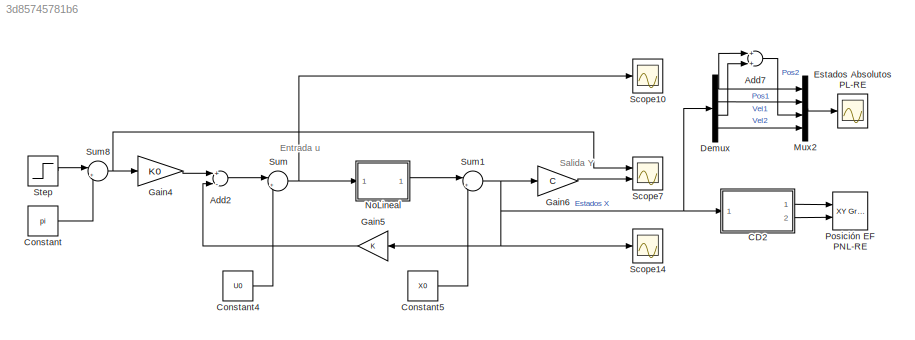
MODEL slx_3d85745781b6
KIND model
CONFIG AbsTol = auto
CONFIG EnableMultiTasking = off
CONFIG FixedStep = auto
CONFIG MaxStep = auto
CONFIG MinStep = auto
CONFIG RelTol = 1e-3
CONFIG SampleTimeConstraint = Unconstrained
CONFIG Solver = ode45
CONFIG SolverName = ode45
CONFIG StartTime = 0.0
CONFIG StopTime = ts
BLOCK [Sum] Add2
  InputSameDT = off
  Inputs = +-
  OutDataTypeStr = Inherit: Inherit via internal rule
  Ports = [2, 1]
  SaturateOnIntegerOverflow = off
BLOCK [Sum] Add7
  InputSameDT = off
  OutDataTypeStr = Inherit: Inherit via internal rule
  Ports = [2, 1]
  SaturateOnIntegerOverflow = off
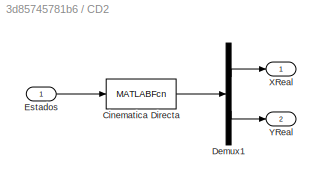
BLOCK [SubSystem] CD2
  Ports = [1, 2]
  RequestExecContextInheritance = off
  TreatAsAtomicUnit = on
BLOCK [MATLABFcn] CD2/Cinematica Directa
  MATLABFcn = CinematicaDirecta
  OutputDimensions = 2
  Ports = [1, 1]
BLOCK [Demux] CD2/Demux1
  DisplayOption = bar
  Outputs = 2
  Ports = [1, 2]
BLOCK [Inport] CD2/Estados
  IconDisplay = Port number
BLOCK [Outport] CD2/XReal
  IconDisplay = Port number
  VectorParamsAs1DForOutWhenUnconnected = off
BLOCK [Outport] CD2/YReal
  IconDisplay = Port number
  Port = 2
  VectorParamsAs1DForOutWhenUnconnected = off
BLOCK [Constant] Constant
  Value = pi
BLOCK [Constant] Constant4
  Value = U0
BLOCK [Constant] Constant5
  Value = X0
BLOCK [Demux] Demux
  DisplayOption = bar
  Ports = [1, 4]
BLOCK [Scope] Estados Absolutos PL-RE
  Floating = off
  NumInputPorts = 1
  Ports = [1]
  ScopeSpecificationString = Simulink.scopes.TimeScopeBlockCfg('CurrentConfiguration', extmgr.ConfigurationSet(extmgr.Configuration('Core','General UI',true,'FigureColor',[0 0 0]),extmgr.Configuration('Core','Source UI',true),extmgr.Configuration('Sources','WiredSimulink',true,'DataLoggingVariableName','ScopeData1'),extmgr.Configuration('Visuals','Time Domain',true,'SerializedDisplays',{struct('MinYLimReal','-0.51098','MaxYLi...<+2080ch>
BLOCK [Gain] Gain4
  Gain = K0
  OutDataTypeStr = Inherit: Inherit via internal rule
  ParamDataTypeStr = Inherit: Inherit via internal rule
  SaturateOnIntegerOverflow = off
BLOCK [Gain] Gain5
  Gain = K
  Multiplication = Matrix(K*u)
  OutDataTypeStr = Inherit: Inherit via internal rule
  ParamDataTypeStr = Inherit: Inherit via internal rule
  SaturateOnIntegerOverflow = off
BLOCK [Gain] Gain6
  Gain = C
  Multiplication = Matrix(K*u)
  OutDataTypeStr = Inherit: Inherit via internal rule
  ParamDataTypeStr = Inherit: Inherit via internal rule
  SaturateOnIntegerOverflow = off
BLOCK [Mux] Mux2
  DisplayOption = bar
  Ports = [4, 1]
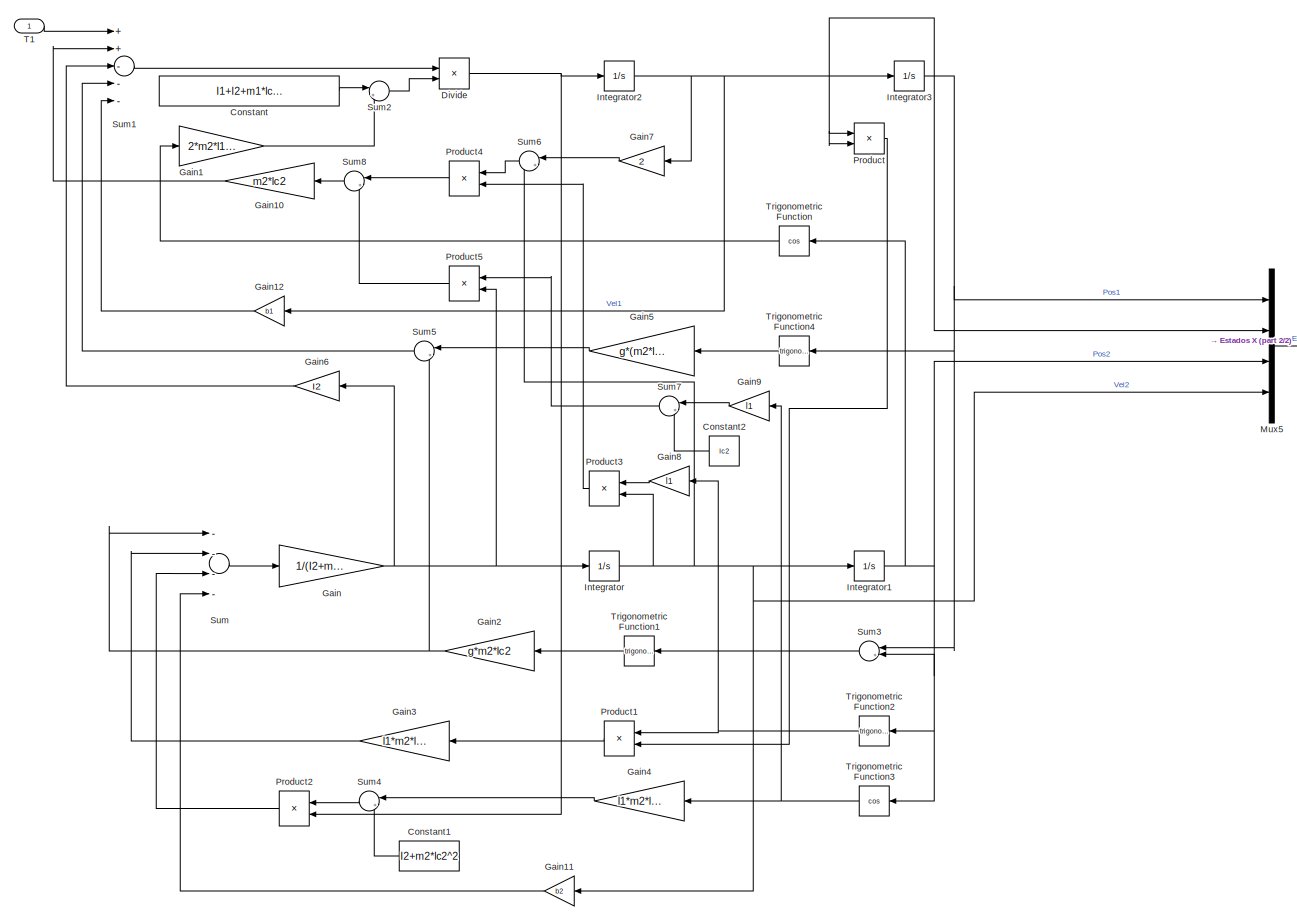
[diagram: NoLineal - part 1/2, most of the canvas]
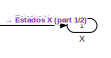
[diagram: NoLineal - part 2/2, middle right region]
BLOCK [SubSystem] NoLineal
  Ports = [1, 1]
  RequestExecContextInheritance = off
BLOCK [Constant] NoLineal/Constant
  Value = I1+I2+m1*lc1^2+m2*(l1^2+lc2^2)
BLOCK [Constant] NoLineal/Constant1
  Value = I2+m2*lc2^2
BLOCK [Constant] NoLineal/Constant2
  Value = lc2
BLOCK [Product] NoLineal/Divide
  InputSameDT = off
  Inputs = */
  OutDataTypeStr = Inherit: Inherit via internal rule
  Ports = [2, 1]
  RndMeth = Floor
  SaturateOnIntegerOverflow = off
BLOCK [Gain] NoLineal/Gain
  Gain = 1/(I2+m2*lc2^2)
  OutDataTypeStr = Inherit: Inherit via internal rule
  ParamDataTypeStr = Inherit: Inherit via internal rule
  SaturateOnIntegerOverflow = off
BLOCK [Gain] NoLineal/Gain1
  Gain = 2*m2*l1*lc2
  OutDataTypeStr = Inherit: Inherit via internal rule
  ParamDataTypeStr = Inherit: Inherit via internal rule
  SaturateOnIntegerOverflow = off
BLOCK [Gain] NoLineal/Gain10
  Gain = m2*lc2
  OutDataTypeStr = Inherit: Inherit via internal rule
  ParamDataTypeStr = Inherit: Inherit via internal rule
  SaturateOnIntegerOverflow = off
BLOCK [Gain] NoLineal/Gain11
  Gain = b2
  OutDataTypeStr = Inherit: Inherit via internal rule
  ParamDataTypeStr = Inherit: Inherit via internal rule
  SaturateOnIntegerOverflow = off
BLOCK [Gain] NoLineal/Gain12
  Gain = b1
  OutDataTypeStr = Inherit: Inherit via internal rule
  ParamDataTypeStr = Inherit: Inherit via internal rule
  SaturateOnIntegerOverflow = off
BLOCK [Gain] NoLineal/Gain2
  Gain = g*m2*lc2
  OutDataTypeStr = Inherit: Inherit via internal rule
  ParamDataTypeStr = Inherit: Inherit via internal rule
  SaturateOnIntegerOverflow = off
BLOCK [Gain] NoLineal/Gain3
  Gain = l1*m2*lc2
  OutDataTypeStr = Inherit: Inherit via internal rule
  ParamDataTypeStr = Inherit: Inherit via internal rule
  SaturateOnIntegerOverflow = off
BLOCK [Gain] NoLineal/Gain4
  Gain = l1*m2*lc2
  OutDataTypeStr = Inherit: Inherit via internal rule
  ParamDataTypeStr = Inherit: Inherit via internal rule
  SaturateOnIntegerOverflow = off
BLOCK [Gain] NoLineal/Gain5
  Gain = g*(m2*l1+m1*lc1)
  OutDataTypeStr = Inherit: Inherit via internal rule
  ParamDataTypeStr = Inherit: Inherit via internal rule
  SaturateOnIntegerOverflow = off
BLOCK [Gain] NoLineal/Gain6
  Gain = I2
  OutDataTypeStr = Inherit: Inherit via internal rule
  ParamDataTypeStr = Inherit: Inherit via internal rule
  SaturateOnIntegerOverflow = off
BLOCK [Gain] NoLineal/Gain7
  Gain = 2
  OutDataTypeStr = Inherit: Inherit via internal rule
  ParamDataTypeStr = Inherit: Inherit via internal rule
  SaturateOnIntegerOverflow = off
BLOCK [Gain] NoLineal/Gain8
  Gain = l1
  OutDataTypeStr = Inherit: Inherit via internal rule
  ParamDataTypeStr = Inherit: Inherit via internal rule
  SaturateOnIntegerOverflow = off
BLOCK [Gain] NoLineal/Gain9
  Gain = l1
  OutDataTypeStr = Inherit: Inherit via internal rule
  ParamDataTypeStr = Inherit: Inherit via internal rule
  SaturateOnIntegerOverflow = off
BLOCK [Integrator] NoLineal/Integrator
  InitialCondition = X0(4)
  Ports = [1, 1]
BLOCK [Integrator] NoLineal/Integrator1
  InitialCondition = X0(3)
  Ports = [1, 1]
BLOCK [Integrator] NoLineal/Integrator2
  InitialCondition = X0(2)
  Ports = [1, 1]
BLOCK [Integrator] NoLineal/Integrator3
  InitialCondition = X0(1)
  Ports = [1, 1]
BLOCK [Mux] NoLineal/Mux5
  DisplayOption = bar
  Ports = [4, 1]
BLOCK [Product] NoLineal/Product
  InputSameDT = off
  OutDataTypeStr = Inherit: Inherit via internal rule
  Ports = [2, 1]
  RndMeth = Floor
  SaturateOnIntegerOverflow = off
BLOCK [Product] NoLineal/Product1
  InputSameDT = off
  OutDataTypeStr = Inherit: Inherit via internal rule
  Ports = [2, 1]
  RndMeth = Floor
  SaturateOnIntegerOverflow = off
BLOCK [Product] NoLineal/Product2
  InputSameDT = off
  OutDataTypeStr = Inherit: Inherit via internal rule
  Ports = [2, 1]
  RndMeth = Floor
  SaturateOnIntegerOverflow = off
BLOCK [Product] NoLineal/Product3
  InputSameDT = off
  OutDataTypeStr = Inherit: Inherit via internal rule
  Ports = [2, 1]
  RndMeth = Floor
  SaturateOnIntegerOverflow = off
BLOCK [Product] NoLineal/Product4
  InputSameDT = off
  OutDataTypeStr = Inherit: Inherit via internal rule
  Ports = [2, 1]
  RndMeth = Floor
  SaturateOnIntegerOverflow = off
BLOCK [Product] NoLineal/Product5
  InputSameDT = off
  OutDataTypeStr = Inherit: Inherit via internal rule
  Ports = [2, 1]
  RndMeth = Floor
  SaturateOnIntegerOverflow = off
BLOCK [Sum] NoLineal/Sum
  InputSameDT = off
  Inputs = ----
  OutDataTypeStr = Inherit: Inherit via internal rule
  Ports = [4, 1]
  SaturateOnIntegerOverflow = off
BLOCK [Sum] NoLineal/Sum1
  InputSameDT = off
  Inputs = ++---
  OutDataTypeStr = Inherit: Inherit via internal rule
  Ports = [5, 1]
  SaturateOnIntegerOverflow = off
BLOCK [Sum] NoLineal/Sum2
  IconShape = round
  InputSameDT = off
  Inputs = |++
  OutDataTypeStr = Inherit: Inherit via internal rule
  Ports = [2, 1]
  SaturateOnIntegerOverflow = off
BLOCK [Sum] NoLineal/Sum3
  IconShape = round
  InputSameDT = off
  Inputs = |++
  OutDataTypeStr = Inherit: Inherit via internal rule
  Ports = [2, 1]
  SaturateOnIntegerOverflow = off
BLOCK [Sum] NoLineal/Sum4
  IconShape = round
  InputSameDT = off
  Inputs = |++
  OutDataTypeStr = Inherit: Inherit via internal rule
  Ports = [2, 1]
  SaturateOnIntegerOverflow = off
BLOCK [Sum] NoLineal/Sum5
  IconShape = round
  InputSameDT = off
  Inputs = |++
  OutDataTypeStr = Inherit: Inherit via internal rule
  Ports = [2, 1]
  SaturateOnIntegerOverflow = off
BLOCK [Sum] NoLineal/Sum6
  IconShape = round
  InputSameDT = off
  Inputs = |++
  OutDataTypeStr = Inherit: Inherit via internal rule
  Ports = [2, 1]
  SaturateOnIntegerOverflow = off
BLOCK [Sum] NoLineal/Sum7
  IconShape = round
  InputSameDT = off
  Inputs = |++
  OutDataTypeStr = Inherit: Inherit via internal rule
  Ports = [2, 1]
  SaturateOnIntegerOverflow = off
BLOCK [Sum] NoLineal/Sum8
  IconShape = round
  InputSameDT = off
  Inputs = |+-
  OutDataTypeStr = Inherit: Inherit via internal rule
  Ports = [2, 1]
  SaturateOnIntegerOverflow = off
BLOCK [Inport] NoLineal/T1
  IconDisplay = Port number
BLOCK [Trigonometry] NoLineal/Trigonometric Function
  Operator = cos
  Ports = [1, 1]
BLOCK [Trigonometry] NoLineal/Trigonometric Function1
  Ports = [1, 1]
BLOCK [Trigonometry] NoLineal/Trigonometric Function2
  Ports = [1, 1]
BLOCK [Trigonometry] NoLineal/Trigonometric Function3
  Operator = cos
  Ports = [1, 1]
BLOCK [Trigonometry] NoLineal/Trigonometric Function4
  Ports = [1, 1]
BLOCK [Outport] NoLineal/X
  IconDisplay = Port number
  VectorParamsAs1DForOutWhenUnconnected = off
BLOCK [Reference] Posición EF PNL-RE  REF=simulink/Sinks/XY Graph
  Ports = [2]
  SourceBlock = simulink/Sinks/XY Graph
  SourceProductBaseCode = SL
  SourceProductName = Simulink
  SourceType = XY scope.
BLOCK [Scope] Scope10
  Floating = off
  NumInputPorts = 1
  Ports = [1]
  ScopeSpecificationString = Simulink.scopes.TimeScopeBlockCfg('CurrentConfiguration', extmgr.ConfigurationSet(extmgr.Configuration('Core','General UI',true,'FigureColor',[0 0 0]),extmgr.Configuration('Core','Source UI',true),extmgr.Configuration('Sources','WiredSimulink',true,'DataLoggingVariableName','ScopeData2'),extmgr.Configuration('Visuals','Time Domain',true,'SerializedDisplays',{struct('MinYLimReal','-0.48132','MaxYLi...<+1676ch>
BLOCK [Scope] Scope14
  Floating = off
  NumInputPorts = 1
  Ports = [1]
  ScopeSpecificationString = Simulink.scopes.TimeScopeBlockCfg('CurrentConfiguration', extmgr.ConfigurationSet(extmgr.Configuration('Core','General UI',true,'FigureColor',[0 0 0]),extmgr.Configuration('Core','Source UI',true),extmgr.Configuration('Sources','WiredSimulink',true,'DataLoggingVariableName','ScopeData3'),extmgr.Configuration('Visuals','Time Domain',true,'SerializedDisplays',{struct('MinYLimReal','-3.18772','MaxYLi...<+2108ch>
BLOCK [Scope] Scope7
  Floating = off
  NumInputPorts = 2
  Ports = [2]
  ScopeSpecificationString = Simulink.scopes.TimeScopeBlockCfg('CurrentConfiguration', extmgr.ConfigurationSet(extmgr.Configuration('Core','General UI',true,'FigureColor',[0 0 0]),extmgr.Configuration('Core','Source UI',true),extmgr.Configuration('Sources','WiredSimulink',true),extmgr.Configuration('Visuals','Time Domain',true,'SerializedDisplays',{struct('MinYLimReal','-0.36684','MaxYLimReal','0.60185','YLabelReal','','MinYL...<+1781ch>
BLOCK [Step] Step
  After = pi+0.5
  SampleTime = 0
  Time = 0
BLOCK [Sum] Sum
  IconShape = round
  InputSameDT = off
  Inputs = |++
  OutDataTypeStr = Inherit: Inherit via internal rule
  Ports = [2, 1]
  SaturateOnIntegerOverflow = off
BLOCK [Sum] Sum1
  IconShape = round
  InputSameDT = off
  Inputs = |+-
  OutDataTypeStr = Inherit: Inherit via internal rule
  Ports = [2, 1]
  SaturateOnIntegerOverflow = off
BLOCK [Sum] Sum8
  IconShape = round
  InputSameDT = off
  Inputs = |+-
  OutDataTypeStr = Inherit: Inherit via internal rule
  Ports = [2, 1]
  SaturateOnIntegerOverflow = off
ANNOTATION (root): Entrada u
ANNOTATION (root): Salida Y
LINE Add2:1 -> Sum:1
LINE Add7:1 -> Mux2:3
LINE CD2/Cinematica Directa:1 -> CD2/Demux1:1
LINE CD2/Demux1:1 -> CD2/XReal:1
LINE CD2/Demux1:2 -> CD2/YReal:1
LINE CD2/Estados:1 -> CD2/Cinematica Directa:1
LINE CD2:1 -> Posición EF PNL-RE:1
LINE CD2:2 -> Posición EF PNL-RE:2
LINE Constant4:1 -> Sum:2
LINE Constant5:1 -> Sum1:2
LINE Constant:1 -> Sum8:2
NET Demux:1 -> Add7:1, Mux2:1
LINE Demux:2 -> Mux2:2
LINE Demux:3 -> Add7:2
LINE Demux:4 -> Mux2:4
LINE Gain4:1 -> Add2:1
LINE Gain5:1 -> Add2:2
LINE Gain6:1 -> Scope7:2
LINE Mux2:1 -> Estados Absolutos PL-RE:1
LINE NoLineal/Constant1:1 -> NoLineal/Sum4:2
LINE NoLineal/Constant2:1 -> NoLineal/Sum7:2
LINE NoLineal/Constant:1 -> NoLineal/Sum2:1
NET NoLineal/Divide:1 -> NoLineal/Integrator2:1, NoLineal/Product2:2
LINE NoLineal/Gain10:1 -> NoLineal/Sum1:2
LINE NoLineal/Gain11:1 -> NoLineal/Sum:4
LINE NoLineal/Gain12:1 -> NoLineal/Sum1:5
LINE NoLineal/Gain1:1 -> NoLineal/Sum2:2
NET NoLineal/Gain2:1 -> NoLineal/Sum5:2, NoLineal/Sum:1
LINE NoLineal/Gain3:1 -> NoLineal/Sum:2
LINE NoLineal/Gain4:1 -> NoLineal/Sum4:1
LINE NoLineal/Gain5:1 -> NoLineal/Sum5:1
LINE NoLineal/Gain6:1 -> NoLineal/Sum1:3
LINE NoLineal/Gain7:1 -> NoLineal/Sum6:1
LINE NoLineal/Gain8:1 -> NoLineal/Product3:1
LINE NoLineal/Gain9:1 -> NoLineal/Sum7:1
NET NoLineal/Gain:1 -> NoLineal/Gain6:1, NoLineal/Integrator:1, NoLineal/Product5:2
NET NoLineal/Integrator1:1 -> NoLineal/Mux5:3, NoLineal/Sum3:2, NoLineal/Trigonometric Function2:1, NoLineal/Trigonometric Function3:1, NoLineal/Trigonometric Function:1
NET NoLineal/Integrator2:1 -> NoLineal/Gain12:1, NoLineal/Gain7:1, NoLineal/Integrator3:1, NoLineal/Mux5:2, NoLineal/Product:1, NoLineal/Product:2
NET NoLineal/Integrator3:1 -> NoLineal/Mux5:1, NoLineal/Sum3:1, NoLineal/Trigonometric Function4:1
NET NoLineal/Integrator:1 -> NoLineal/Gain11:1, NoLineal/Integrator1:1, NoLineal/Mux5:4, NoLineal/Product3:2, NoLineal/Sum6:2
LINE NoLineal/Mux5:1 -> NoLineal/X:1
LINE NoLineal/Product1:1 -> NoLineal/Gain3:1
LINE NoLineal/Product2:1 -> NoLineal/Sum:3
LINE NoLineal/Product3:1 -> NoLineal/Product4:2
LINE NoLineal/Product4:1 -> NoLineal/Sum8:1
LINE NoLineal/Product5:1 -> NoLineal/Sum8:2
LINE NoLineal/Product:1 -> NoLineal/Product1:2
LINE NoLineal/Sum1:1 -> NoLineal/Divide:1
LINE NoLineal/Sum2:1 -> NoLineal/Divide:2
LINE NoLineal/Sum3:1 -> NoLineal/Trigonometric Function1:1
LINE NoLineal/Sum4:1 -> NoLineal/Product2:1
LINE NoLineal/Sum5:1 -> NoLineal/Sum1:4
LINE NoLineal/Sum6:1 -> NoLineal/Product4:1
LINE NoLineal/Sum7:1 -> NoLineal/Product5:1
LINE NoLineal/Sum8:1 -> NoLineal/Gain10:1
LINE NoLineal/Sum:1 -> NoLineal/Gain:1
LINE NoLineal/T1:1 -> NoLineal/Sum1:1
LINE NoLineal/Trigonometric Function1:1 -> NoLineal/Gain2:1
NET NoLineal/Trigonometric Function2:1 -> NoLineal/Gain8:1, NoLineal/Product1:1
NET NoLineal/Trigonometric Function3:1 -> NoLineal/Gain4:1, NoLineal/Gain9:1
LINE NoLineal/Trigonometric Function4:1 -> NoLineal/Gain5:1
LINE NoLineal/Trigonometric Function:1 -> NoLineal/Gain1:1
LINE NoLineal:1 -> Sum1:1
LINE Step:1 -> Sum8:1
NET Sum1:1 -> CD2:1, Demux:1, Gain5:1, Gain6:1, Scope14:1
NET Sum8:1 -> Gain4:1, Scope7:1
NET Sum:1 -> NoLineal:1, Scope10:1
note: NET lines group one-source signal fan-out (src -> all destinations, sorted); 1:1 wires keep LINE
